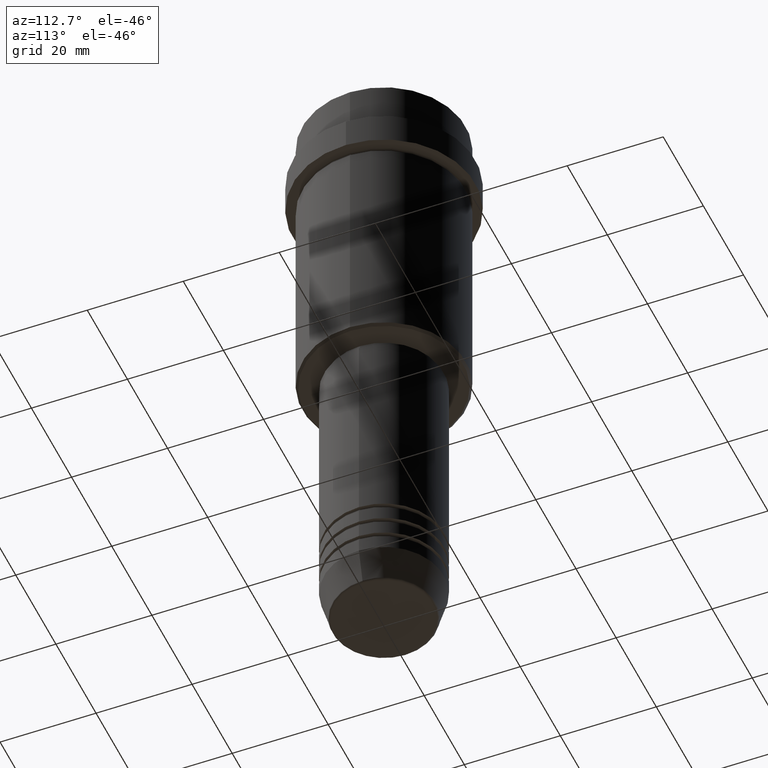
[diagram: clean part render]
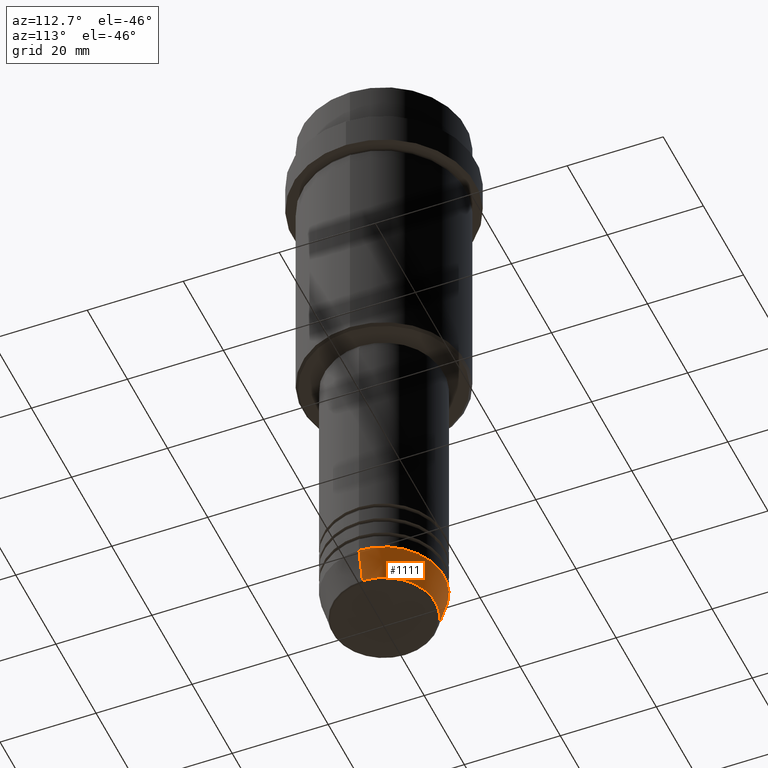
[diagram: same view with one face highlighted and labeled with its STEP entity id]
A machine part, auxiliary view. The second image highlights one B-rep face of the part: STEP entity #1111.
In plain terms, the highlighted conical surface has half-angle 15 deg.
Its self-contained STEP definition (entity closure, byte-faithful):
#6 = ORIENTED_EDGE ( 'NONE', *, *, #515, .F. ) ;
#20 = CARTESIAN_POINT ( 'NONE',  ( -12.50000000000000000, 1.530808498934191521E-15, -123.0000000000000000 ) ) ;
#44 = VECTOR ( 'NONE', #565, 1000.000000000000000 ) ;
#143 = DIRECTION ( 'NONE',  ( 1.000000000000000000, 0.000000000000000000, 0.000000000000000000 ) ) ;
#193 = LINE ( 'NONE', #1298, #1398 ) ;
#230 = EDGE_CURVE ( 'NONE', #1075, #245, #243, .T. ) ;
#243 = LINE ( 'NONE', #903, #44 ) ;
#245 = VERTEX_POINT ( 'NONE', #20 ) ;
#249 = DIRECTION ( 'NONE',  ( 1.000000000000000000, 0.000000000000000000, 0.000000000000000000 ) ) ;
#329 = VERTEX_POINT ( 'NONE', #1181 ) ;
#387 = CIRCLE ( 'NONE', #1142, 10.72365507213718416 ) ;
#412 = CIRCLE ( 'NONE', #578, 12.50000000000000000 ) ;
#496 = DIRECTION ( 'NONE',  ( 1.000000000000000000, 0.000000000000000000, 0.000000000000000000 ) ) ;
#515 = EDGE_CURVE ( 'NONE', #846, #329, #193, .T. ) ;
#536 = EDGE_LOOP ( 'NONE', ( #1383, #1029, #1329, #6 ) ) ;
#565 = DIRECTION ( 'NONE',  ( -0.2588190451025213501, 3.169619151431772337E-17, 0.9659258262890680902 ) ) ;
#578 = AXIS2_PLACEMENT_3D ( 'NONE', #703, #584, #249 ) ;
#584 = DIRECTION ( 'NONE',  ( -0.000000000000000000, -0.000000000000000000, 1.000000000000000000 ) ) ;
#611 = CARTESIAN_POINT ( 'NONE',  ( 0.000000000000000000, 0.000000000000000000, -123.0000000000000000 ) ) ;
#678 = DIRECTION ( 'NONE',  ( -0.000000000000000000, -0.000000000000000000, 1.000000000000000000 ) ) ;
#703 = CARTESIAN_POINT ( 'NONE',  ( 0.000000000000000000, 0.000000000000000000, -123.0000000000000000 ) ) ;
#715 = CARTESIAN_POINT ( 'NONE',  ( -10.72365507213718416, 1.422038742429750121E-15, -129.6294095225512706 ) ) ;
#723 = FACE_OUTER_BOUND ( 'NONE', #536, .T. ) ;
#765 = AXIS2_PLACEMENT_3D ( 'NONE', #611, #1062, #496 ) ;
#768 = EDGE_CURVE ( 'NONE', #846, #1075, #387, .T. ) ;
#846 = VERTEX_POINT ( 'NONE', #1126 ) ;
#870 = DIRECTION ( 'NONE',  ( 0.2588190451025213501, 0.000000000000000000, 0.9659258262890680902 ) ) ;
#903 = CARTESIAN_POINT ( 'NONE',  ( -12.50000000000000000, 1.530808498934191521E-15, -123.0000000000000000 ) ) ;
#1014 = CARTESIAN_POINT ( 'NONE',  ( 0.000000000000000000, 0.000000000000000000, -129.6294095225512706 ) ) ;
#1029 = ORIENTED_EDGE ( 'NONE', *, *, #230, .T. ) ;
#1062 = DIRECTION ( 'NONE',  ( -0.000000000000000000, -0.000000000000000000, 1.000000000000000000 ) ) ;
#1075 = VERTEX_POINT ( 'NONE', #715 ) ;
#1111 = ADVANCED_FACE ( 'NONE', ( #723 ), #1212, .T. ) ;
#1126 = CARTESIAN_POINT ( 'NONE',  ( 10.72365507213718416, 0.000000000000000000, -129.6294095225512706 ) ) ;
#1142 = AXIS2_PLACEMENT_3D ( 'NONE', #1014, #678, #143 ) ;
#1181 = CARTESIAN_POINT ( 'NONE',  ( 12.50000000000000000, 0.000000000000000000, -123.0000000000000000 ) ) ;
#1212 = CONICAL_SURFACE ( 'NONE', #765, 12.50000000000000000, 0.2617993877991500740 ) ;
#1298 = CARTESIAN_POINT ( 'NONE',  ( 12.50000000000000000, 0.000000000000000000, -123.0000000000000000 ) ) ;
#1329 = ORIENTED_EDGE ( 'NONE', *, *, #1351, .F. ) ;
#1351 = EDGE_CURVE ( 'NONE', #329, #245, #412, .T. ) ;
#1383 = ORIENTED_EDGE ( 'NONE', *, *, #768, .T. ) ;
#1398 = VECTOR ( 'NONE', #870, 1000.000000000000000 ) ;